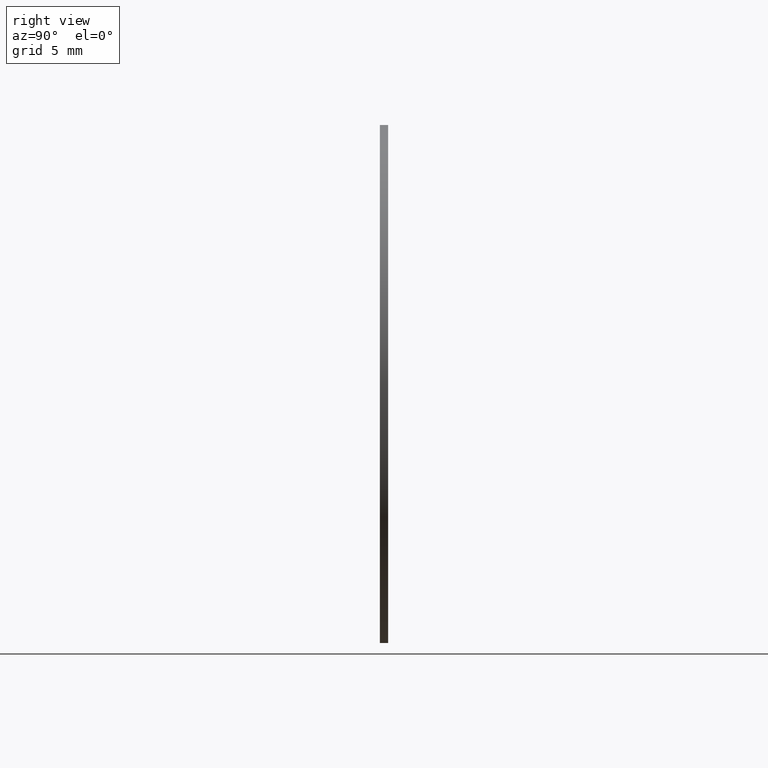
[diagram: clean part render]
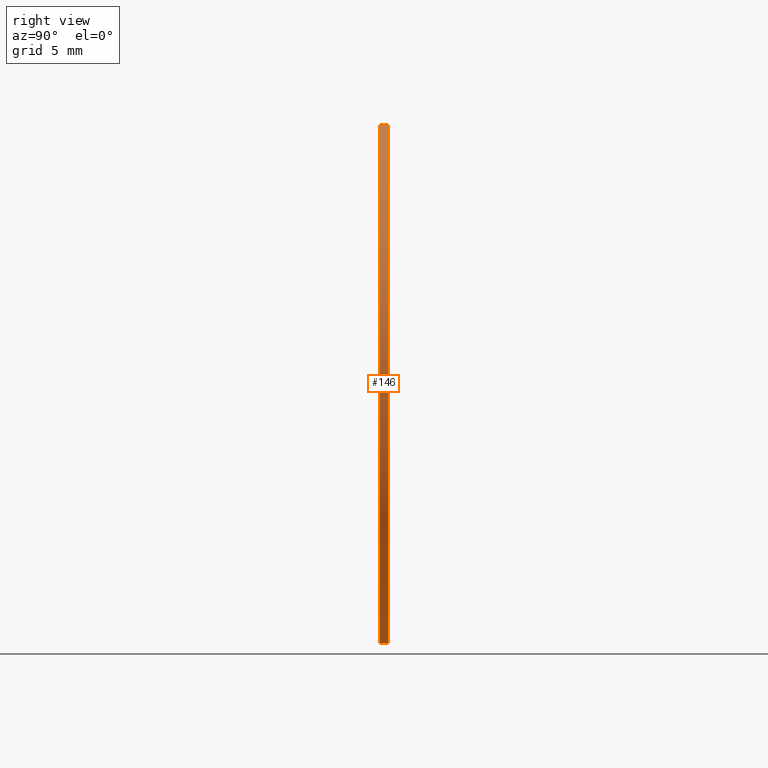
[diagram: same view with one face highlighted and labeled with its STEP entity id]
A machine part, right view. The second image highlights one B-rep face of the part: STEP entity #146.
In plain terms, the highlighted cylindrical surface (partial cylindrical patch) has radius 12.5 mm, axis along (-0, -1, -0).
Its self-contained STEP definition (entity closure, byte-faithful):
#5 = EDGE_CURVE ( 'NONE', #135, #247, #35, .T. ) ;
#8 = DIRECTION ( 'NONE',  ( -0.000000000000000000, -1.000000000000000000, -0.000000000000000000 ) ) ;
#9 = DIRECTION ( 'NONE',  ( 0.000000000000000000, 1.000000000000000000, 0.000000000000000000 ) ) ;
#13 = VECTOR ( 'NONE', #154, 1000.000000000000000 ) ;
#24 = DIRECTION ( 'NONE',  ( 0.000000000000000000, 1.000000000000000000, 0.000000000000000000 ) ) ;
#26 = CARTESIAN_POINT ( 'NONE',  ( 1.530808498934191521E-15, 0.2000000000000000111, 12.50000000000000000 ) ) ;
#35 = LINE ( 'NONE', #157, #13 ) ;
#37 = VERTEX_POINT ( 'NONE', #93 ) ;
#61 = DIRECTION ( 'NONE',  ( 0.000000000000000000, 0.000000000000000000, 1.000000000000000000 ) ) ;
#73 = ORIENTED_EDGE ( 'NONE', *, *, #221, .T. ) ;
#93 = CARTESIAN_POINT ( 'NONE',  ( 1.530808498934191521E-15, 0.2000000000000000111, 12.50000000000000000 ) ) ;
#100 = CARTESIAN_POINT ( 'NONE',  ( 0.000000000000000000, 0.2000000000000000111, -12.50000000000000000 ) ) ;
#116 = EDGE_CURVE ( 'NONE', #37, #135, #182, .T. ) ;
#117 = CIRCLE ( 'NONE', #173, 12.50000000000000000 ) ;
#123 = CARTESIAN_POINT ( 'NONE',  ( 0.000000000000000000, -0.2000000000000000111, 0.000000000000000000 ) ) ;
#130 = AXIS2_PLACEMENT_3D ( 'NONE', #213, #193, #165 ) ;
#135 = VERTEX_POINT ( 'NONE', #100 ) ;
#139 = LINE ( 'NONE', #26, #181 ) ;
#142 = CARTESIAN_POINT ( 'NONE',  ( 0.000000000000000000, 0.2000000000000000111, 0.000000000000000000 ) ) ;
#146 = ADVANCED_FACE ( 'NONE', ( #180 ), #195, .T. ) ;
#148 = ORIENTED_EDGE ( 'NONE', *, *, #5, .F. ) ;
#154 = DIRECTION ( 'NONE',  ( -0.000000000000000000, -1.000000000000000000, -0.000000000000000000 ) ) ;
#157 = CARTESIAN_POINT ( 'NONE',  ( 0.000000000000000000, 0.2000000000000000111, -12.50000000000000000 ) ) ;
#161 = EDGE_CURVE ( 'NONE', #37, #227, #139, .T. ) ;
#164 = CARTESIAN_POINT ( 'NONE',  ( 1.530808498934191521E-15, -0.2000000000000000111, 12.50000000000000000 ) ) ;
#165 = DIRECTION ( 'NONE',  ( 0.000000000000000000, 0.000000000000000000, -1.000000000000000000 ) ) ;
#173 = AXIS2_PLACEMENT_3D ( 'NONE', #123, #9, #61 ) ;
#180 = FACE_OUTER_BOUND ( 'NONE', #229, .T. ) ;
#181 = VECTOR ( 'NONE', #8, 1000.000000000000000 ) ;
#182 = CIRCLE ( 'NONE', #194, 12.50000000000000000 ) ;
#193 = DIRECTION ( 'NONE',  ( -0.000000000000000000, -1.000000000000000000, -0.000000000000000000 ) ) ;
#194 = AXIS2_PLACEMENT_3D ( 'NONE', #142, #24, #237 ) ;
#195 = CYLINDRICAL_SURFACE ( 'NONE', #130, 12.50000000000000000 ) ;
#206 = ORIENTED_EDGE ( 'NONE', *, *, #161, .T. ) ;
#211 = ORIENTED_EDGE ( 'NONE', *, *, #116, .F. ) ;
#213 = CARTESIAN_POINT ( 'NONE',  ( 0.000000000000000000, 0.2000000000000000111, 0.000000000000000000 ) ) ;
#221 = EDGE_CURVE ( 'NONE', #227, #247, #117, .T. ) ;
#227 = VERTEX_POINT ( 'NONE', #164 ) ;
#229 = EDGE_LOOP ( 'NONE', ( #211, #206, #73, #148 ) ) ;
#237 = DIRECTION ( 'NONE',  ( 0.000000000000000000, 0.000000000000000000, 1.000000000000000000 ) ) ;
#238 = CARTESIAN_POINT ( 'NONE',  ( 0.000000000000000000, -0.2000000000000000111, -12.50000000000000000 ) ) ;
#247 = VERTEX_POINT ( 'NONE', #238 ) ;